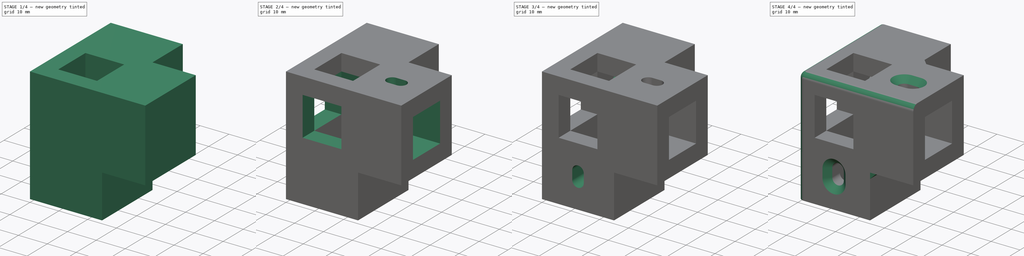
[diagram: build sequence overview — one tinted view per stage of 4, left to right]
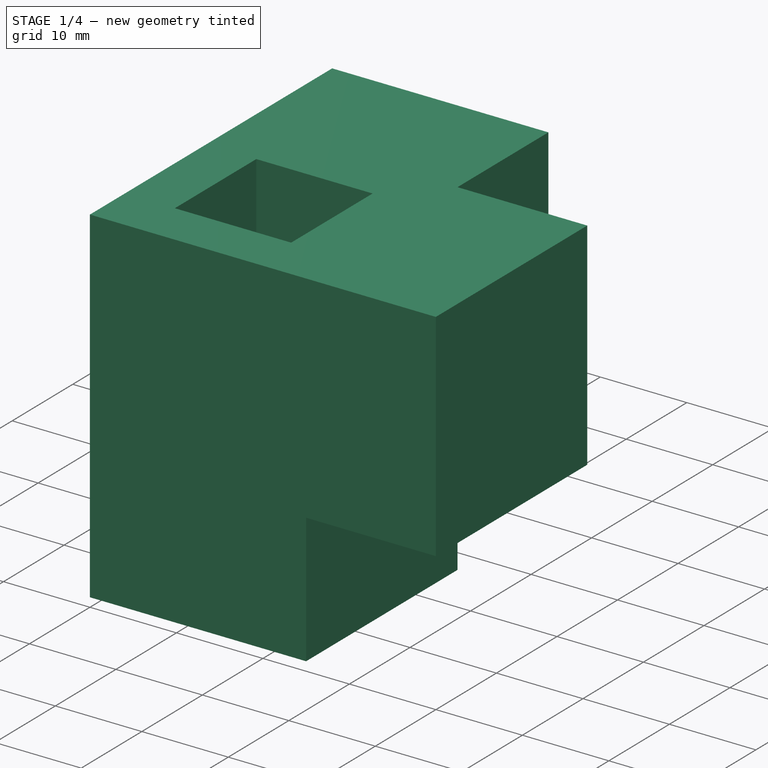
[diagram: stage 1 of 4 — iso view after this stage's code; geometry added in this stage tinted green]
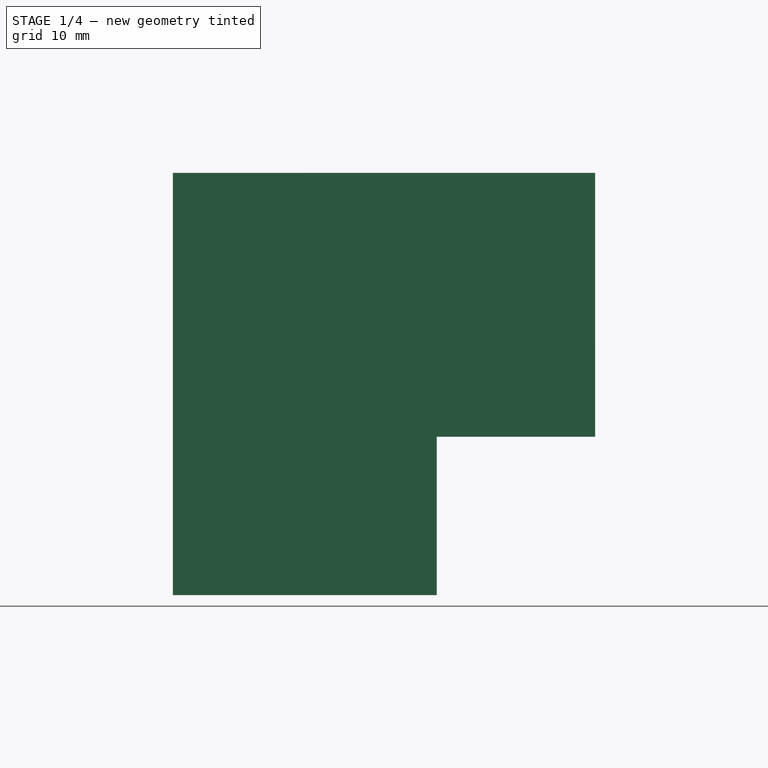
[diagram: stage 1 of 4 — front view after this stage's code; geometry added in this stage tinted green]
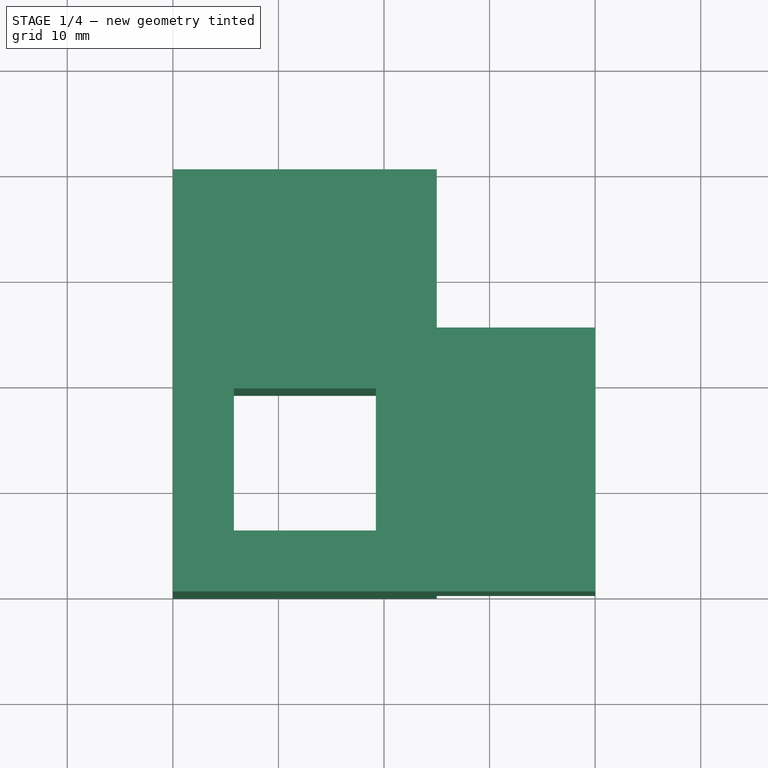
[diagram: stage 1 of 4 — top view after this stage's code; geometry added in this stage tinted green]
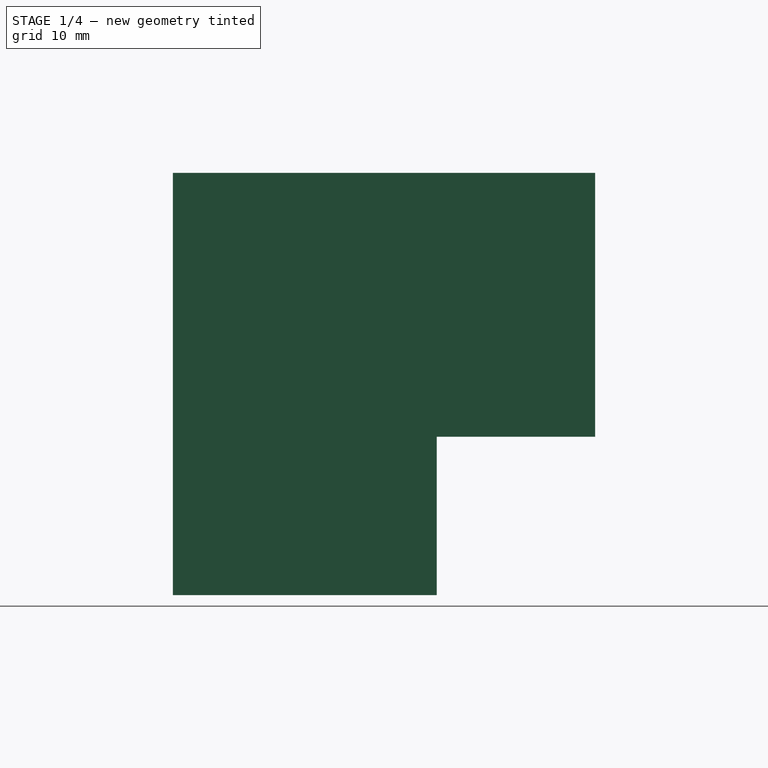
[diagram: stage 1 of 4 — right view after this stage's code; geometry added in this stage tinted green]
FCSTD DOCUMENT  (FreeCAD 0.17R13634 (Git))
Label: Connector3way_square_V5
License: All rights reserved
LicenseURL: http://en.wikipedia.org/wiki/All_rights_reserved
objects: Sketcher::SketchObject×8, PartDesign::Pocket×6, PartDesign::Pad×2, PartDesign::Chamfer×2, PartDesign::Fillet×1, PartDesign::Body×1
note: 28 computed .brp shape members not serialized (recipe doc carries the construction recipe); baked Part::Feature solids carry a one-line shape summary decoded from their .brp

FEATURE [Sketcher::SketchObject] Sketch  label="profile_L"
  MapMode = 5
  Support = -> [XY_Plane]
  sketch-geometry (6):
    g0: LineSegment StartX=0 StartY=40 StartZ=0 EndX=0 EndY=0 EndZ=0
    g1: LineSegment StartX=0 StartY=0 StartZ=0 EndX=40 EndY=0 EndZ=0
    g2: LineSegment StartX=40 StartY=0 StartZ=0 EndX=40 EndY=25 EndZ=0
    g3: LineSegment StartX=40 StartY=25 StartZ=0 EndX=25 EndY=25 EndZ=0
    g4: LineSegment StartX=25 StartY=25 StartZ=0 EndX=25 EndY=40 EndZ=0
    g5: LineSegment StartX=25 StartY=40 StartZ=0 EndX=0 EndY=40 EndZ=0
  constraints (17):
    c: Coincident(g0,g1)
    c: Horizontal(g1)
    c: Coincident(g1,g2)
    c: Vertical(g2)
    c: Coincident(g2,g3)
    c: Coincident(g3,g4)
    c: Vertical(g4)
    c: Coincident(g4,g5)
    c: Coincident(g5,g0)
    c: Horizontal(g5)
    c: Horizontal(g3)
    c: Vertical(g0)
    c: Coincident(g0,g-1)
    c: Equal(g5,g2)
    c: Distance(g5) = 25
    c: Equal(g4,g3)
    c: Distance(g3) = 15
FEATURE [PartDesign::Pad] Pad
  Length = 25
  Length2 = 100
  Profile = -> Sketch
  Type = 0
FEATURE [Sketcher::SketchObject] Sketch001  label="scolumn_square"
  ExternalGeometry = -> [Pad]
  MapMode = 5
  Placement = pos=(0,0,0) rot=(1,0,0;3.14159rad)
  Support = -> [Pad]
  sketch-geometry (4):
    g0: LineSegment StartX=0 StartY=0 StartZ=0 EndX=25 EndY=0 EndZ=0
    g1: LineSegment StartX=25 StartY=0 StartZ=0 EndX=25 EndY=-25 EndZ=0
    g2: LineSegment StartX=25 StartY=-25 StartZ=0 EndX=0 EndY=-25 EndZ=0
    g3: LineSegment StartX=0 StartY=-25 StartZ=0 EndX=0 EndY=0 EndZ=0
  constraints (10):
    c: Coincident(g0,g1)
    c: Coincident(g1,g2)
    c: Coincident(g2,g3)
    c: Coincident(g3,g0)
    c: Horizontal(g0)
    c: Horizontal(g2)
    c: Vertical(g1)
    c: Vertical(g3)
    c: Coincident(g0,g-1)
    c: Coincident(g1,g-3)
FEATURE [PartDesign::Pad] Pad001
  BaseFeature = -> Pad
  Length = 15
  Length2 = 100
  Profile = -> Sketch001
  Type = 0
FEATURE [Sketcher::SketchObject] Sketch002  label="square_hole1"
  ExternalGeometry = -> [Pad001]
  MapMode = 5
  Placement = pos=(0,0,-15) rot=(1,0,0;3.14159rad)
  Support = -> [Pad001]
  sketch-geometry (6):
    g0: LineSegment StartX=5.775 StartY=-5.775 StartZ=0 EndX=19.225 EndY=-5.775 EndZ=0
    g1: LineSegment StartX=19.225 StartY=-5.775 StartZ=0 EndX=19.225 EndY=-19.225 EndZ=0
    g2: LineSegment StartX=19.225 StartY=-19.225 StartZ=0 EndX=5.775 EndY=-19.225 EndZ=0
    g3: LineSegment StartX=5.775 StartY=-19.225 StartZ=0 EndX=5.775 EndY=-5.775 EndZ=0
    g4: LineSegment [constr] StartX=5.775 StartY=-5.775 StartZ=0 EndX=0 EndY=0 EndZ=0
    g5: LineSegment [constr] StartX=19.225 StartY=-19.225 StartZ=0 EndX=25 EndY=-25 EndZ=0
  constraints (16):
    c: Coincident(g0,g1)
    c: Coincident(g1,g2)
    c: Coincident(g2,g3)
    c: Coincident(g3,g0)
    c: Horizontal(g0)
    c: Horizontal(g2)
    c: Vertical(g1)
    c: Vertical(g3)
    c: Equal(g0,g1)
    c: Coincident(g4,g0)
    c: Coincident(g4,g-1)
    c: Coincident(g5,g1)
    c: Coincident(g5,g-4)
    c: Equal(g5,g4)
    c: Parallel(g5,g4)
    c: Distance(g0) = 13.45
FEATURE [PartDesign::Pocket] Pocket
  BaseFeature = -> Pad001
  Length = 5
  Length2 = 100
  Profile = -> Sketch002
  Type = 1
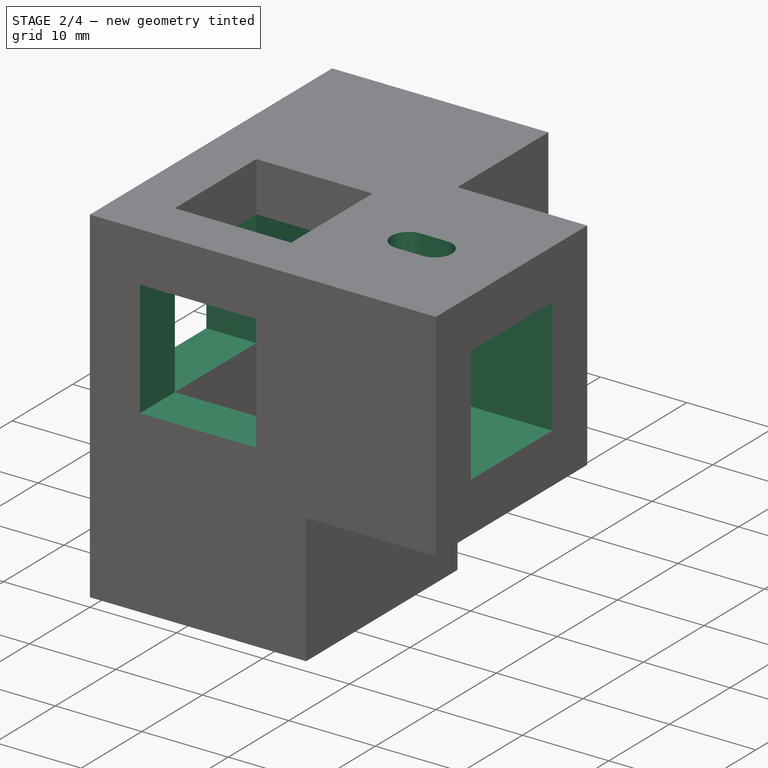
[diagram: stage 2 of 4 — iso view after this stage's code; geometry added in this stage tinted green]
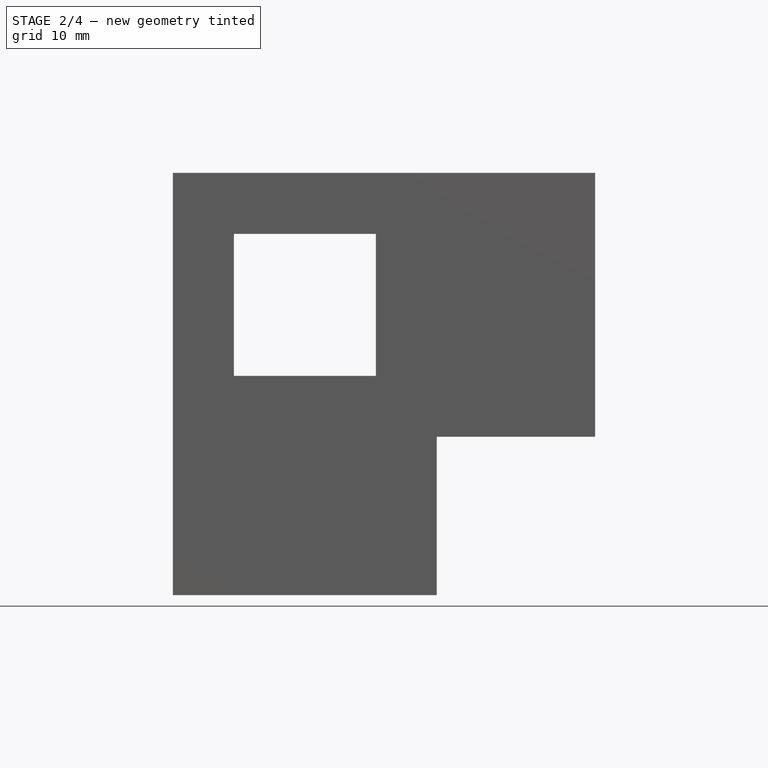
[diagram: stage 2 of 4 — front view after this stage's code; geometry added in this stage tinted green]
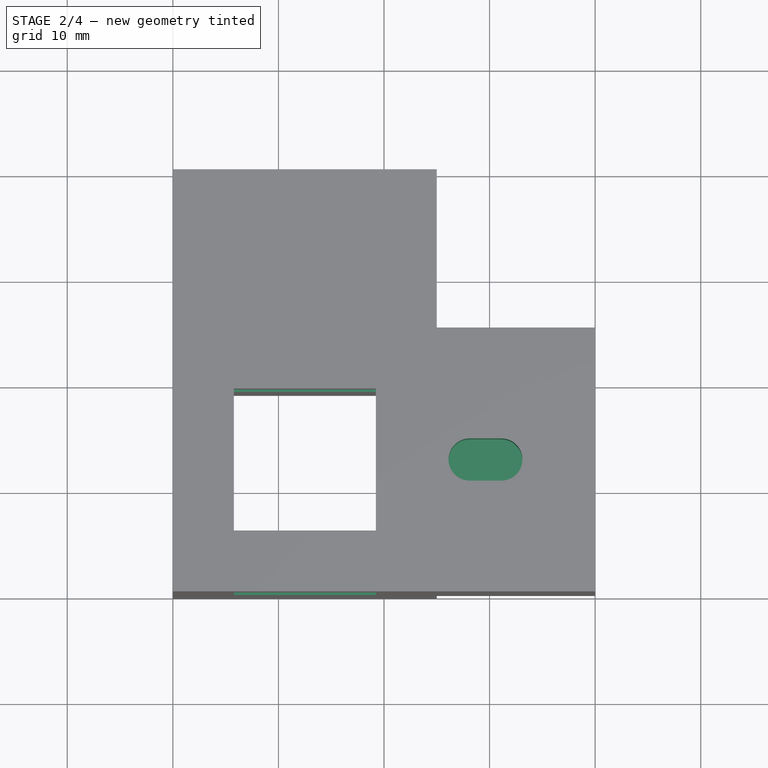
[diagram: stage 2 of 4 — top view after this stage's code; geometry added in this stage tinted green]
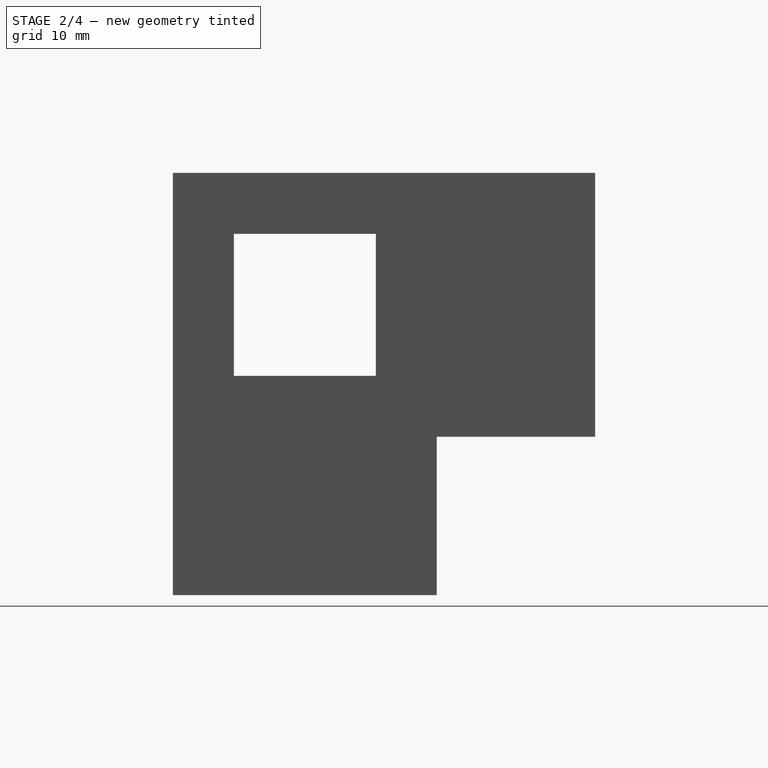
[diagram: stage 2 of 4 — right view after this stage's code; geometry added in this stage tinted green]
FEATURE [Sketcher::SketchObject] Sketch003  label="square_hole2"
  ExternalGeometry = -> [Pocket]
  MapMode = 5
  Placement = pos=(40,0,0) rot=(0.57735,0.57735,0.57735;2.0944rad)
  Support = -> [Pocket]
  sketch-geometry (6):
    g0: LineSegment StartX=5.775 StartY=19.225 StartZ=0 EndX=19.225 EndY=19.225 EndZ=0
    g1: LineSegment StartX=19.225 StartY=19.225 StartZ=0 EndX=19.225 EndY=5.775 EndZ=0
    g2: LineSegment StartX=19.225 StartY=5.775 StartZ=0 EndX=5.775 EndY=5.775 EndZ=0
    g3: LineSegment StartX=5.775 StartY=5.775 StartZ=0 EndX=5.775 EndY=19.225 EndZ=0
    g4: LineSegment [constr] StartX=5.775 StartY=19.225 StartZ=0 EndX=0 EndY=25 EndZ=0
    g5: LineSegment [constr] StartX=19.225 StartY=5.775 StartZ=0 EndX=25 EndY=0 EndZ=0
  constraints (16):
    c: Coincident(g0,g1)
    c: Coincident(g1,g2)
    c: Coincident(g2,g3)
    c: Coincident(g3,g0)
    c: Horizontal(g0)
    c: Horizontal(g2)
    c: Vertical(g1)
    c: Vertical(g3)
    c: Equal(g0,g1)
    c: Coincident(g4,g0)
    c: Coincident(g4,g-3)
    c: Coincident(g5,g1)
    c: Coincident(g5,g-4)
    c: Equal(g5,g4)
    c: Parallel(g5,g4)
    c: Distance(g0) = 13.45
FEATURE [PartDesign::Pocket] Pocket001
  BaseFeature = -> Pocket
  Length = 5
  Length2 = 100
  Profile = -> Sketch003
  Type = 1
FEATURE [Sketcher::SketchObject] Sketch004  label="square_hole3"
  ExternalGeometry = -> [Pocket001]
  MapMode = 5
  Placement = pos=(0,40,0) rot=(0,0.707107,0.707107;3.14159rad)
  Support = -> [Pocket001]
  sketch-geometry (6):
    g0: LineSegment StartX=-19.225 StartY=19.225 StartZ=0 EndX=-5.775 EndY=19.225 EndZ=0
    g1: LineSegment StartX=-5.775 StartY=19.225 StartZ=0 EndX=-5.775 EndY=5.775 EndZ=0
    g2: LineSegment StartX=-5.775 StartY=5.775 StartZ=0 EndX=-19.225 EndY=5.775 EndZ=0
    g3: LineSegment StartX=-19.225 StartY=5.775 StartZ=0 EndX=-19.225 EndY=19.225 EndZ=0
    g4: LineSegment [constr] StartX=-25 StartY=25 StartZ=0 EndX=-19.225 EndY=19.225 EndZ=0
    g5: LineSegment [constr] StartX=-5.775 StartY=5.775 StartZ=0 EndX=0 EndY=0 EndZ=0
  constraints (16):
    c: Coincident(g0,g1)
    c: Coincident(g1,g2)
    c: Coincident(g2,g3)
    c: Coincident(g3,g0)
    c: Horizontal(g0)
    c: Horizontal(g2)
    c: Vertical(g1)
    c: Vertical(g3)
    c: Equal(g0,g1)
    c: Coincident(g4,g-3)
    c: Coincident(g4,g0)
    c: Coincident(g5,g1)
    c: Coincident(g5,g-1)
    c: Equal(g4,g5)
    c: Parallel(g4,g5)
    c: Distance(g0) = 13.45
FEATURE [PartDesign::Pocket] Pocket002
  BaseFeature = -> Pocket001
  Length = 5
  Length2 = 100
  Profile = -> Sketch004
  Type = 1
FEATURE [Sketcher::SketchObject] Sketch005  label="ellipse_hole1"
  ExternalGeometry = -> [Pocket002]
  MapMode = 5
  Placement = pos=(0,0,25) rot=(0,0,1;0rad)
  Support = -> [Pocket002]
  sketch-geometry (10):
    g0: LineSegment [constr] StartX=25 StartY=25 StartZ=0 EndX=25 EndY=0 EndZ=0
    g1: LineSegment [constr] StartX=25 StartY=25 StartZ=0 EndX=40 EndY=0 EndZ=0
    g2: LineSegment [constr] StartX=40 StartY=25 StartZ=0 EndX=25 EndY=0 EndZ=0
    g3: GeomPoint X=32.5 Y=12.5 Z=0
    g4: ArcOfCircle CenterX=28.1125 CenterY=12.5 CenterZ=0 NormalX=0 NormalY=0 NormalZ=1 AngleXU=0 Radius=2 StartAngle=1.5708 EndAngle=4.71239
    g5: ArcOfCircle CenterX=31.1125 CenterY=12.5 CenterZ=0 NormalX=0 NormalY=0 NormalZ=1 AngleXU=0 Radius=2 StartAngle=4.71239 EndAngle=7.85398
    g6: LineSegment StartX=28.1125 StartY=10.5 StartZ=0 EndX=31.1125 EndY=10.5 EndZ=0
    g7: LineSegment StartX=28.1125 StartY=14.5 StartZ=0 EndX=31.1125 EndY=14.5 EndZ=0
    g8: LineSegment [constr] StartX=33.1125 StartY=12.5 StartZ=0 EndX=40 EndY=12.5 EndZ=0
    g9: LineSegment [constr] StartX=26.1125 StartY=12.5 StartZ=0 EndX=19.225 EndY=12.5 EndZ=0
  constraints (27):
    c: Coincident(g0,g-5)
    c: PointOnObject(g0,g-1)
    c: Vertical(g0)
    c: Coincident(g1,g0)
    c: Coincident(g1,g-3)
    c: Coincident(g2,g-5)
    c: Coincident(g2,g0)
    c: PointOnObject(g3,g2)
    c: PointOnObject(g3,g1)
    c: Tangent(g4,g7) = 1.5708
    c: Tangent(g4,g6) = -1.5708
    c: Tangent(g6,g5) = -1.5708
    c: Tangent(g7,g5) = 1.5708
    c: Horizontal(g6)
    c: Equal(g4,g5)
    c: DistanceY(g3,g5) = 0
    c: Radius(g5) = 2
    c: PointOnObject(g8,g5)
    c: PointOnObject(g8,g-3)
    c: Horizontal(g8)
    c: DistanceY(g3,g8) = 0
    c: PointOnObject(g9,g4)
    c: PointOnObject(g9,g-4)
    c: DistanceY(g3,g9) = 0
    c: Horizontal(g9)
    c: Equal(g9,g8)
    c: Distance(g4,g5) = 3
FEATURE [PartDesign::Pocket] Pocket003
  BaseFeature = -> Pocket002
  Length = 6
  Length2 = 100
  Profile = -> Sketch005
  Type = 0
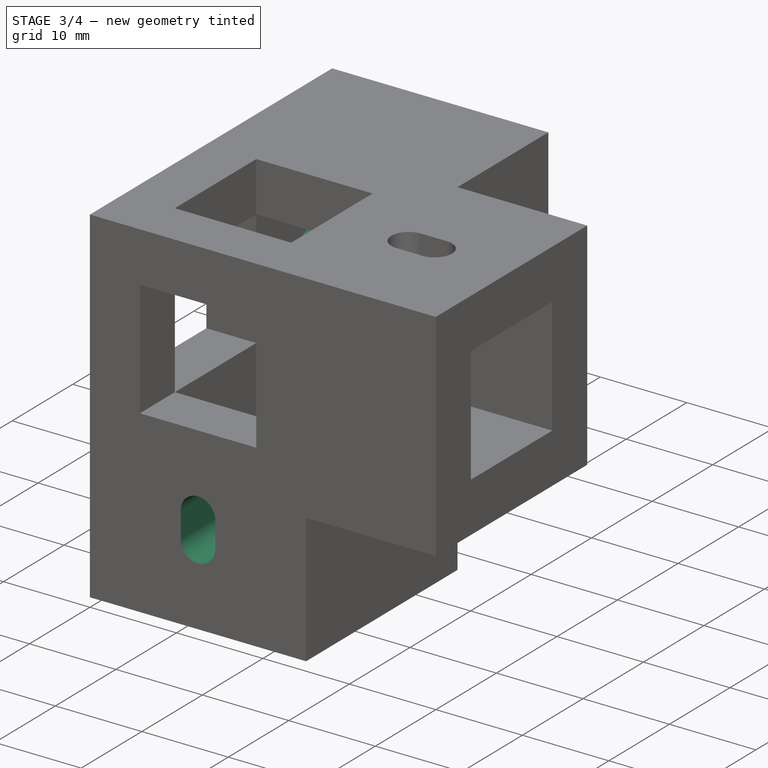
[diagram: stage 3 of 4 — iso view after this stage's code; geometry added in this stage tinted green]
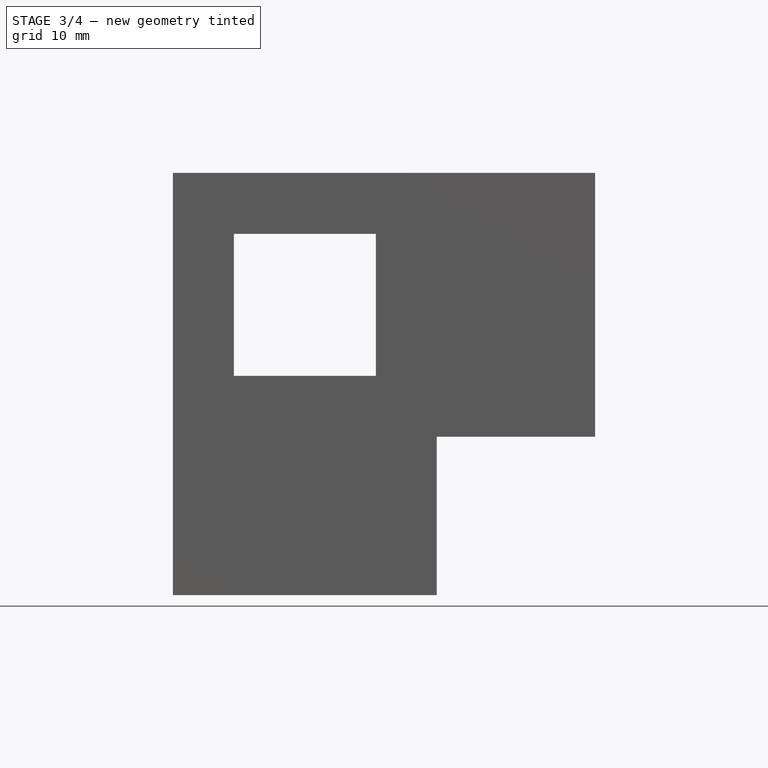
[diagram: stage 3 of 4 — front view after this stage's code; geometry added in this stage tinted green]
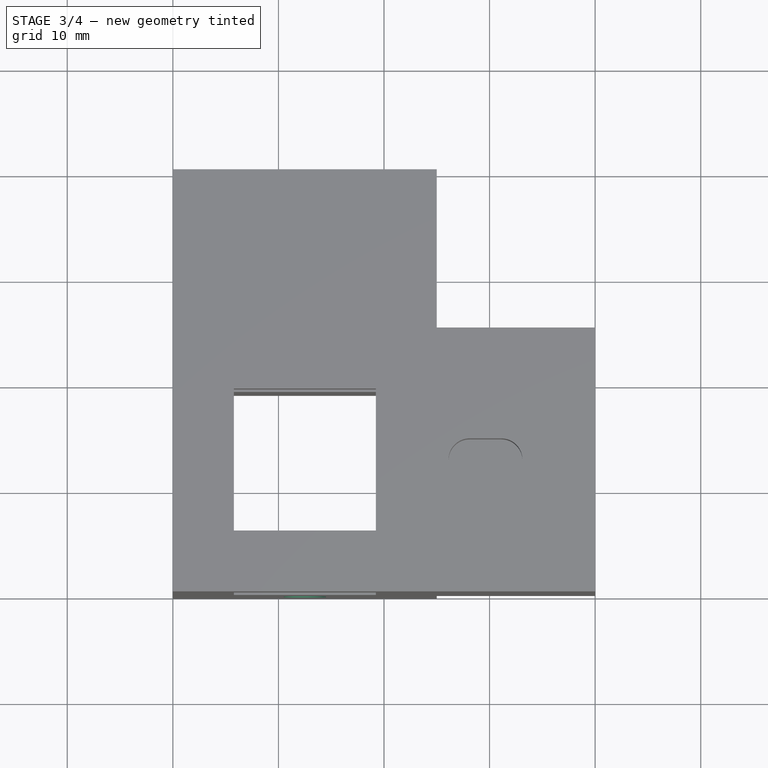
[diagram: stage 3 of 4 — top view after this stage's code; geometry added in this stage tinted green]
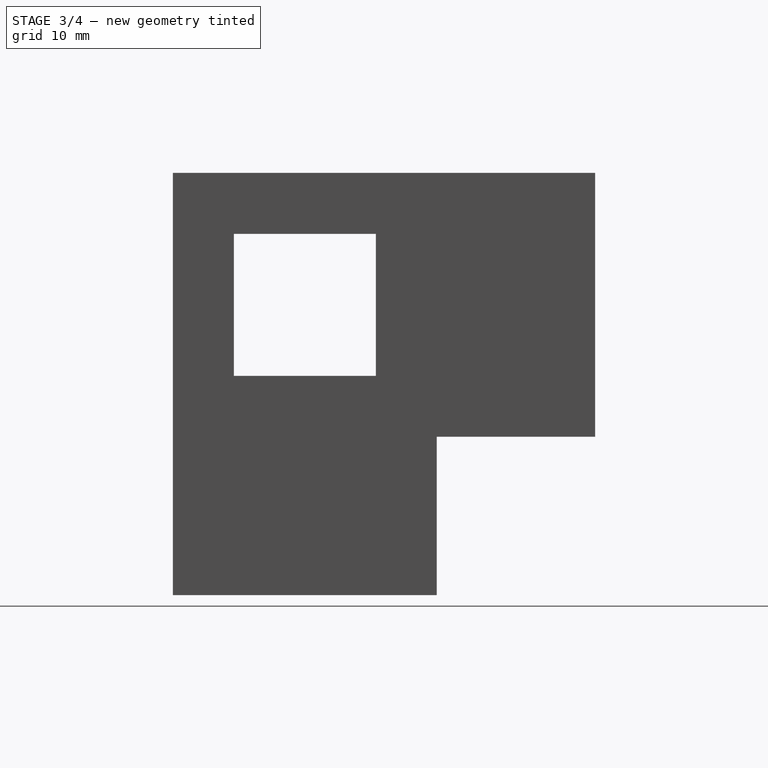
[diagram: stage 3 of 4 — right view after this stage's code; geometry added in this stage tinted green]
FEATURE [Sketcher::SketchObject] Sketch006  label="ellipse_hole2"
  ExternalGeometry = -> [Pocket003]
  MapMode = 5
  Placement = pos=(0,0,0) rot=(1,0,0;1.5708rad)
  Support = -> [Pocket003]
  sketch-geometry (9):
    g0: LineSegment [constr] StartX=0 StartY=0 StartZ=0 EndX=25 EndY=-15 EndZ=0
    g1: LineSegment [constr] StartX=25 StartY=0 StartZ=0 EndX=0 EndY=-15 EndZ=0
    g2: GeomPoint X=12.5 Y=-7.5 Z=0
    g3: ArcOfCircle CenterX=12.5 CenterY=-3.1125 CenterZ=0 NormalX=0 NormalY=0 NormalZ=1 AngleXU=0 Radius=2 StartAngle=0 EndAngle=3.14159
    g4: ArcOfCircle CenterX=12.5 CenterY=-6.1125 CenterZ=0 NormalX=0 NormalY=0 NormalZ=1 AngleXU=0 Radius=2 StartAngle=3.14159 EndAngle=6.28319
    g5: LineSegment StartX=10.5 StartY=-3.1125 StartZ=0 EndX=10.5 EndY=-6.1125 EndZ=0
    g6: LineSegment StartX=14.5 StartY=-3.1125 StartZ=0 EndX=14.5 EndY=-6.1125 EndZ=0
    g7: LineSegment [constr] StartX=12.5 StartY=-1.1125 StartZ=0 EndX=12.5 EndY=5.775 EndZ=0
    g8: LineSegment [constr] StartX=12.5 StartY=-8.1125 StartZ=0 EndX=12.5 EndY=-15 EndZ=0
  constraints (24):
    c: Coincident(g0,g-1)
    c: Coincident(g0,g-4)
    c: Coincident(g1,g-4)
    c: Coincident(g1,g-3)
    c: PointOnObject(g2,g1)
    c: PointOnObject(g2,g0)
    c: Tangent(g3,g6) = 1.5708
    c: Tangent(g3,g5) = -1.5708
    c: Tangent(g5,g4) = -1.5708
    c: Tangent(g6,g4) = 1.5708
    c: Vertical(g5)
    c: Equal(g3,g4)
    c: DistanceX(g2,g4) = 0
    c: PointOnObject(g7,g3)
    c: PointOnObject(g7,g-5)
    c: PointOnObject(g8,g4)
    c: PointOnObject(g8,g-3)
    c: Equal(g8,g7)
    c: DistanceX(g3,g7) = 0
    c: DistanceX(g2,g8) = 0
    c: Vertical(g8)
    c: Vertical(g7)
    c: Radius(g4) = 2
    c: Distance(g3,g4) = 3
FEATURE [PartDesign::Pocket] Pocket004
  BaseFeature = -> Pocket003
  Length = 6
  Length2 = 100
  Profile = -> Sketch006
  Type = 0
FEATURE [Sketcher::SketchObject] Sketch007  label="ellipse_hole3"
  ExternalGeometry = -> [Pocket004]
  MapMode = 5
  Placement = pos=(0,0,0) rot=(0.57735,-0.57735,-0.57735;2.0944rad)
  Support = -> [Pocket004]
  sketch-geometry (10):
    g0: LineSegment [constr] StartX=-19.225 StartY=25 StartZ=0 EndX=-19.225 EndY=0 EndZ=0
    g1: LineSegment [constr] StartX=-40 StartY=25 StartZ=0 EndX=-19.225 EndY=0 EndZ=0
    g2: LineSegment [constr] StartX=-19.225 StartY=25 StartZ=0 EndX=-40 EndY=0 EndZ=0
    g3: GeomPoint X=-29.6125 Y=12.5 Z=0
    g4: ArcOfCircle CenterX=-31.1125 CenterY=12.5 CenterZ=0 NormalX=0 NormalY=0 NormalZ=1 AngleXU=0 Radius=2 StartAngle=1.5708 EndAngle=4.71239
    g5: ArcOfCircle CenterX=-28.1125 CenterY=12.5 CenterZ=0 NormalX=0 NormalY=0 NormalZ=1 AngleXU=0 Radius=2 StartAngle=4.71239 EndAngle=7.85398
    g6: LineSegment StartX=-31.1125 StartY=10.5 StartZ=0 EndX=-28.1125 EndY=10.5 EndZ=0
    g7: LineSegment StartX=-31.1125 StartY=14.5 StartZ=0 EndX=-28.1125 EndY=14.5 EndZ=0
    g8: LineSegment [constr] StartX=-33.1125 StartY=12.5 StartZ=0 EndX=-40 EndY=12.5 EndZ=0
    g9: LineSegment [constr] StartX=-26.1125 StartY=12.5 StartZ=0 EndX=-19.225 EndY=12.5 EndZ=0
  constraints (28):
    c: PointOnObject(g0,g-5)
    c: PointOnObject(g0,g-1)
    c: Vertical(g0)
    c: PointOnObject(g-4,g0)
    c: Coincident(g1,g-5)
    c: Coincident(g1,g0)
    c: Coincident(g2,g0)
    c: Coincident(g2,g-3)
    c: PointOnObject(g3,g2)
    c: PointOnObject(g3,g1)
    c: Tangent(g4,g7) = 1.5708
    c: Tangent(g4,g6) = -1.5708
    c: Tangent(g6,g5) = -1.5708
    c: Tangent(g7,g5) = 1.5708
    c: Horizontal(g6)
    c: Equal(g4,g5)
    c: DistanceY(g3,g5) = 0
    c: PointOnObject(g8,g4)
    c: PointOnObject(g8,g-3)
    c: PointOnObject(g9,g0)
    c: PointOnObject(g9,g5)
    c: Equal(g9,g8)
    c: DistanceY(g9,g3) = 0
    c: Horizontal(g9)
    c: DistanceY(g3,g8) = 0
    c: Horizontal(g8)
    c: Radius(g5) = 2
    c: Distance(g4,g5) = 3
FEATURE [PartDesign::Pocket] Pocket005
  BaseFeature = -> Pocket004
  Length = 6
  Length2 = 100
  Profile = -> Sketch007
  Type = 0
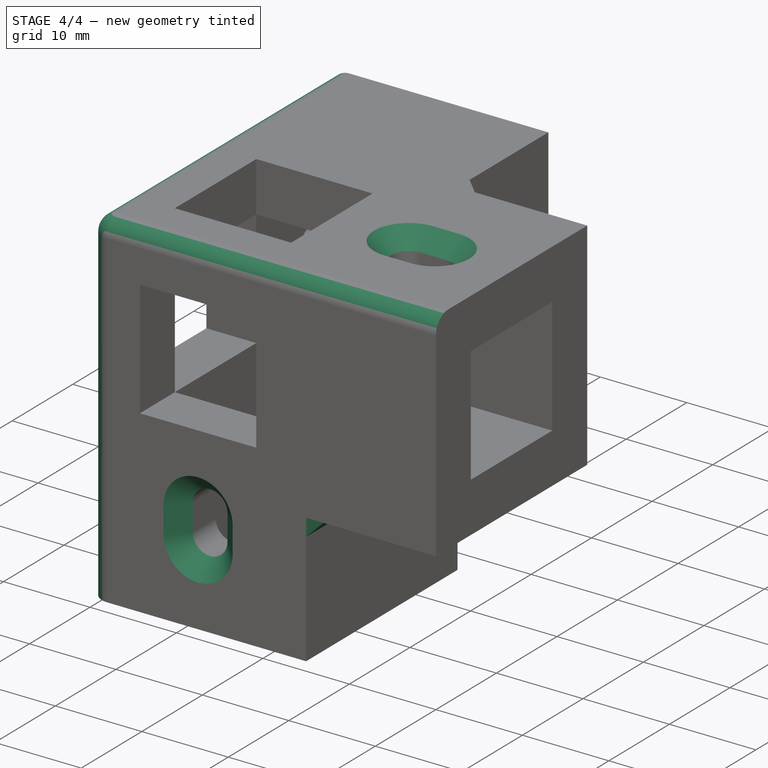
[diagram: stage 4 of 4 — iso view after this stage's code; geometry added in this stage tinted green]
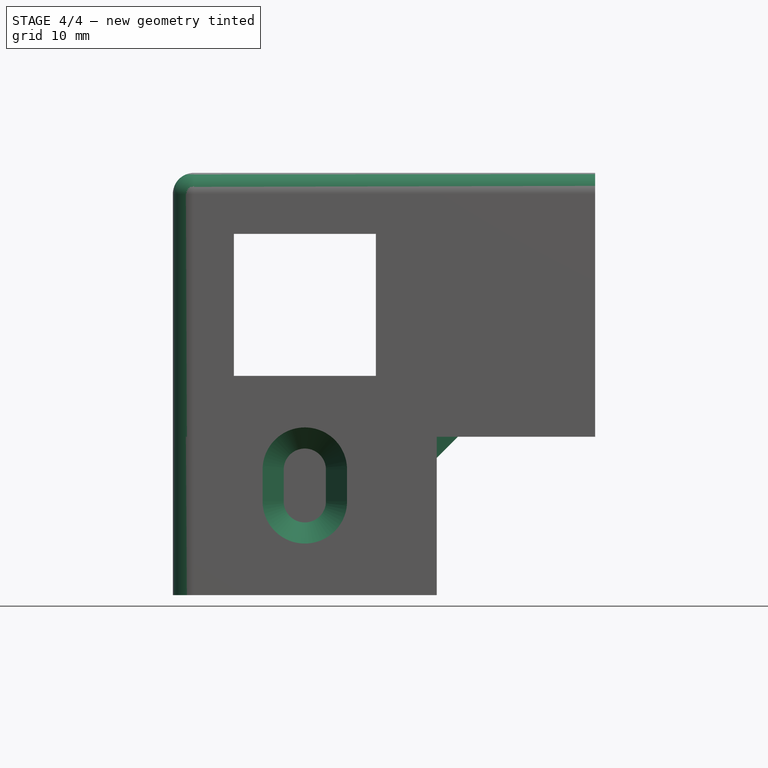
[diagram: stage 4 of 4 — front view after this stage's code; geometry added in this stage tinted green]
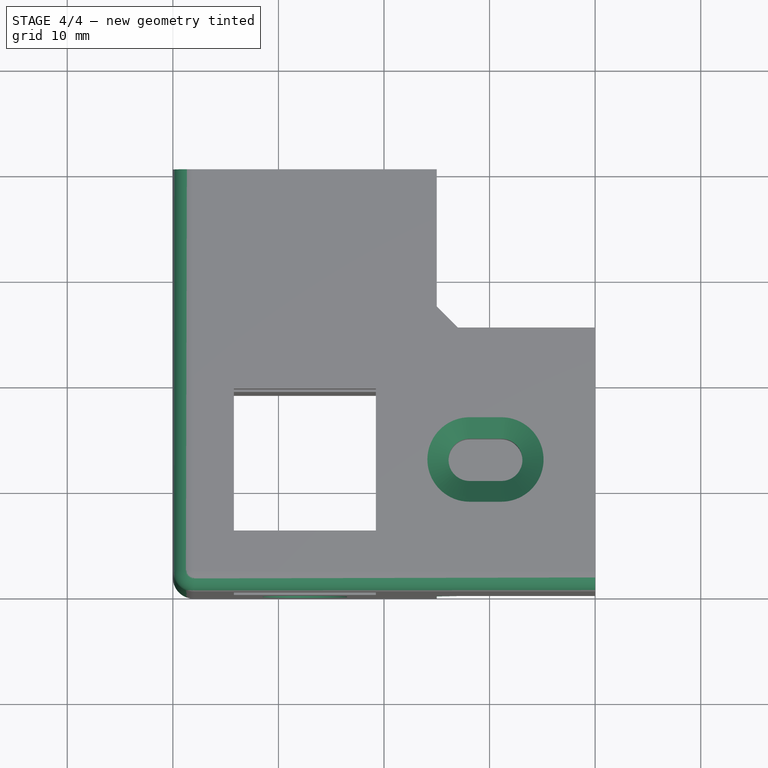
[diagram: stage 4 of 4 — top view after this stage's code; geometry added in this stage tinted green]
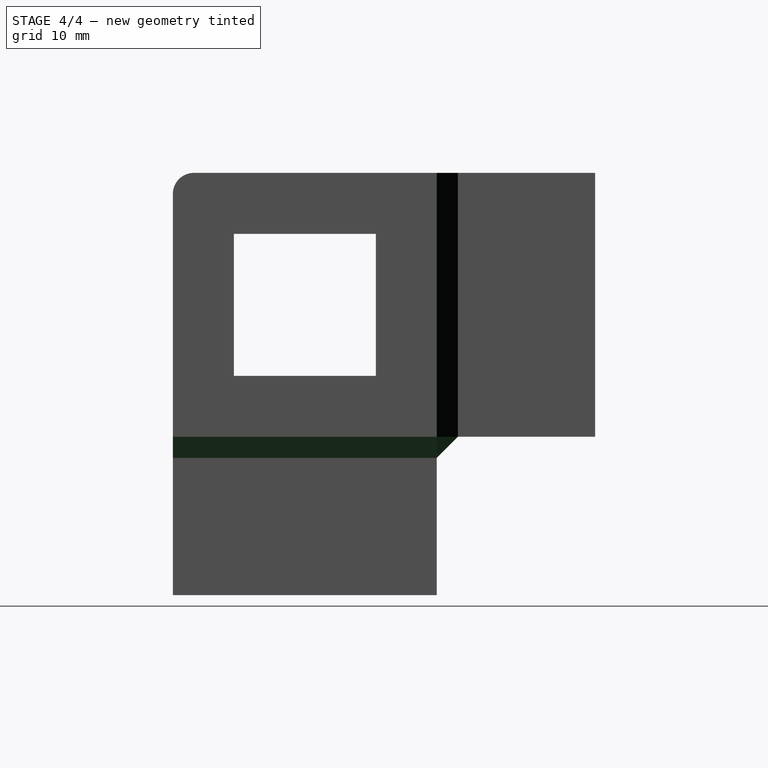
[diagram: stage 4 of 4 — right view after this stage's code; geometry added in this stage tinted green]
FEATURE [PartDesign::Fillet] Fillet
  Base = -> Pocket005 [Edge81,Edge27,Edge14,Edge15]
  BaseFeature = -> Pocket005
  Radius = 2
FEATURE [PartDesign::Chamfer] Chamfer
  Base = -> Fillet [Edge32,Edge33,Edge31,Edge30,Edge15,Edge16,Edge17,Edge18,Edge128,Edge125,Edge126,Edge127]
  BaseFeature = -> Fillet
  Size = 2
FEATURE [PartDesign::Chamfer] Chamfer001
  Base = -> Chamfer [Edge96,Edge33,Edge73]
  BaseFeature = -> Chamfer
  Size = 2
FEATURE [PartDesign::Body] Body
  Group = -> [Sketch,Pad,Sketch001,Pad001,Sketch002,Pocket,Sketch003,Pocket001,Sketch004,Pocket002,Sketch005,Pocket003,Sketch006,Pocket004,Sketch007,Pocket005,Fillet,Chamfer,Chamfer001]
  Origin = -> Origin
  Tip = -> Chamfer001
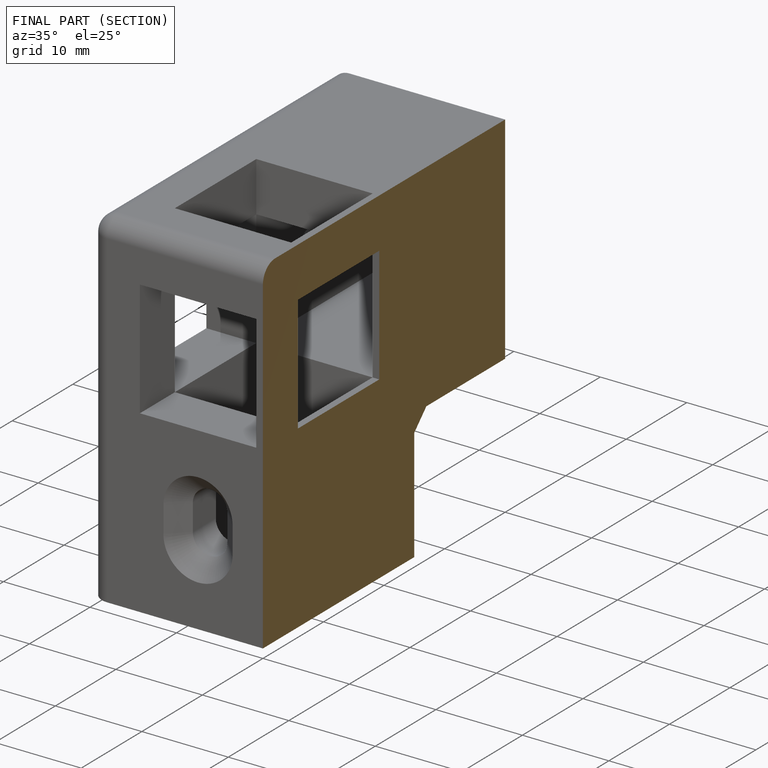
[diagram: finished part — half-section view (interior)]
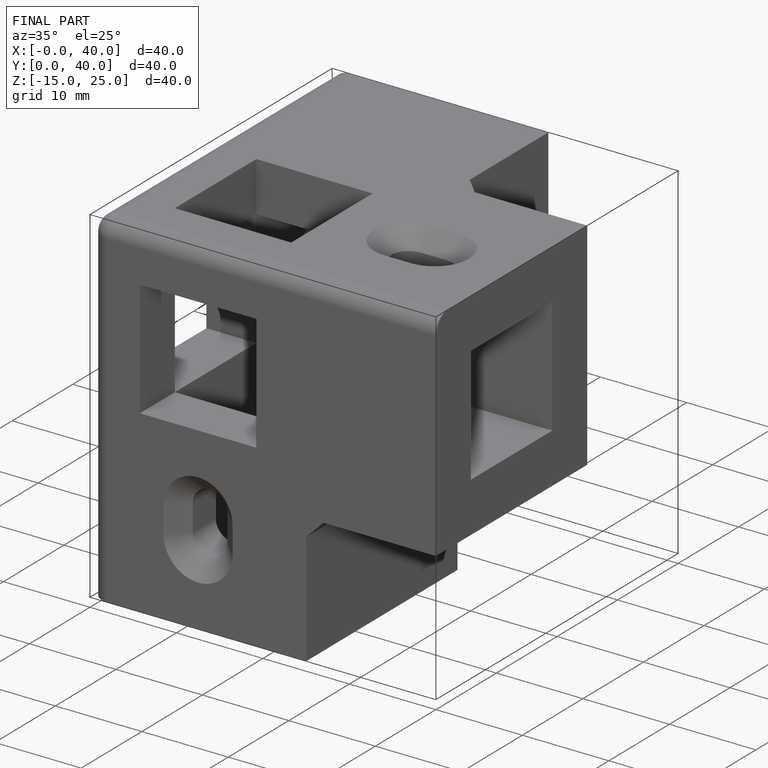
[diagram: finished part — iso view with bounding-box wireframe]
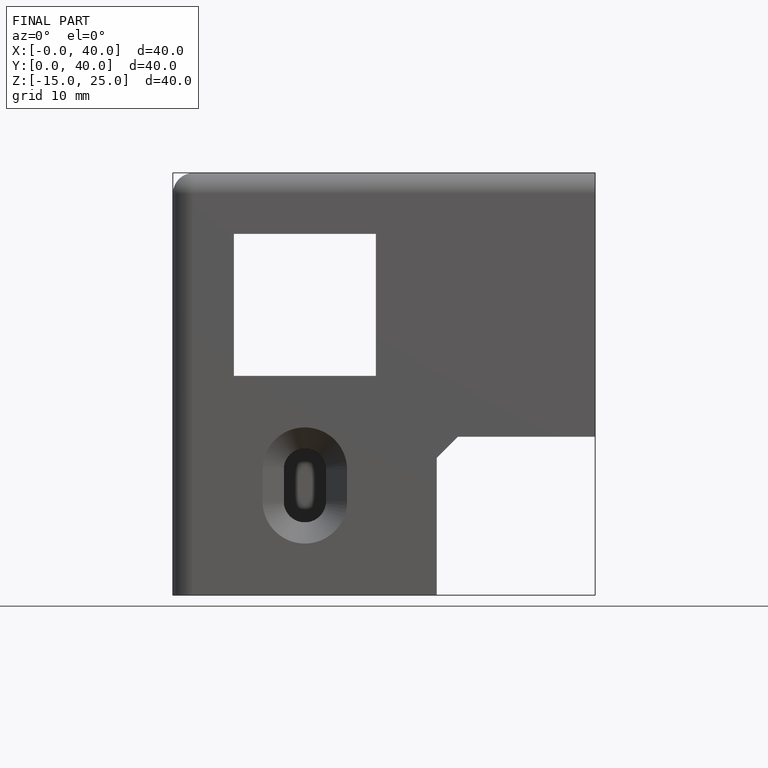
[diagram: finished part — front view with bounding-box wireframe]
